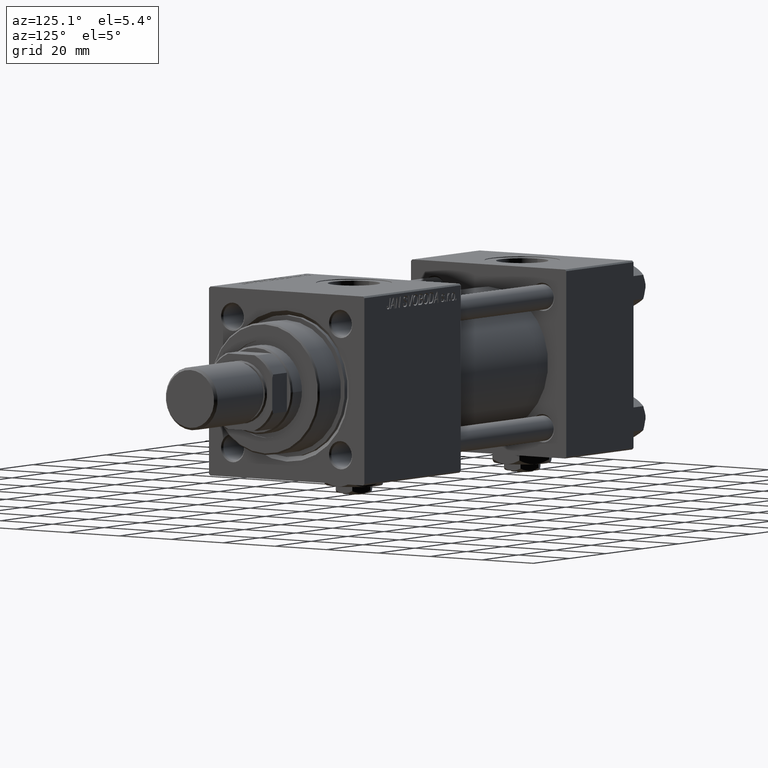
[diagram: clean part render]
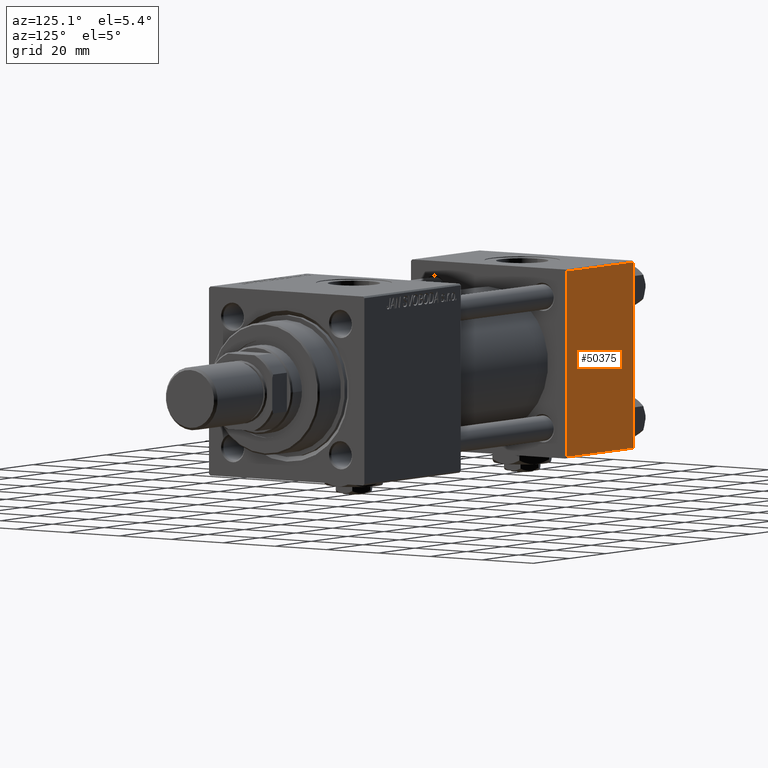
[diagram: same view with one face highlighted and labeled with its STEP entity id]
A machine part, auxiliary view. The second image highlights one B-rep face of the part: STEP entity #50375.
In plain terms, the highlighted planar face has unit normal (0, 1, 0).
Its self-contained STEP definition (entity closure, byte-faithful):
#150 = DIRECTION ( 'NONE',  ( -0.000000000000000000, 1.000000000000000000, 0.000000000000000000 ) ) ;
#392 = DIRECTION ( 'NONE',  ( 0.000000000000000000, 0.000000000000000000, -1.000000000000000000 ) ) ;
#1106 = ORIENTED_EDGE ( 'NONE', *, *, #38932, .T. ) ;
#3620 = PLANE ( 'NONE',  #15829 ) ;
#4140 = CARTESIAN_POINT ( 'NONE',  ( 37.00000000000000000, 29.99999999999999289, -29.50000000000000000 ) ) ;
#5272 = DIRECTION ( 'NONE',  ( 0.000000000000000000, 0.000000000000000000, -1.000000000000000000 ) ) ;
#6153 = VECTOR ( 'NONE', #11510, 1000.000000000000000 ) ;
#6437 = ORIENTED_EDGE ( 'NONE', *, *, #48100, .T. ) ;
#6901 = CARTESIAN_POINT ( 'NONE',  ( 0.000000000000000000, 29.99999999999999289, 29.50000000000000000 ) ) ;
#8398 = DIRECTION ( 'NONE',  ( 1.000000000000000000, 0.000000000000000000, 0.000000000000000000 ) ) ;
#8519 = ORIENTED_EDGE ( 'NONE', *, *, #24196, .F. ) ;
#9126 = EDGE_CURVE ( 'NONE', #36408, #39318, #28143, .T. ) ;
#11510 = DIRECTION ( 'NONE',  ( -1.000000000000000000, 0.000000000000000000, 0.000000000000000000 ) ) ;
#15829 = AXIS2_PLACEMENT_3D ( 'NONE', #40180, #150, #48414 ) ;
#16710 = ORIENTED_EDGE ( 'NONE', *, *, #9126, .T. ) ;
#16780 = CARTESIAN_POINT ( 'NONE',  ( 37.00000000000000000, 29.99999999999999289, 29.50000000000000000 ) ) ;
#21827 = CARTESIAN_POINT ( 'NONE',  ( 0.000000000000000000, 29.99999999999999289, 30.00000000000000000 ) ) ;
#24196 = EDGE_CURVE ( 'NONE', #36408, #39254, #50320, .T. ) ;
#24292 = VECTOR ( 'NONE', #392, 1000.000000000000000 ) ;
#28143 = LINE ( 'NONE', #28675, #31079 ) ;
#28413 = CARTESIAN_POINT ( 'NONE',  ( 37.00000000000000000, 29.99999999999999289, 30.00000000000000000 ) ) ;
#28468 = VERTEX_POINT ( 'NONE', #4140 ) ;
#28675 = CARTESIAN_POINT ( 'NONE',  ( 37.00000000000000000, 29.99999999999999289, 29.50000000000000000 ) ) ;
#31079 = VECTOR ( 'NONE', #8398, 1000.000000000000000 ) ;
#32429 = LINE ( 'NONE', #28413, #24292 ) ;
#32712 = FACE_OUTER_BOUND ( 'NONE', #52077, .T. ) ;
#33055 = CARTESIAN_POINT ( 'NONE',  ( 0.000000000000000000, 29.99999999999999289, -29.50000000000000000 ) ) ;
#36408 = VERTEX_POINT ( 'NONE', #6901 ) ;
#38932 = EDGE_CURVE ( 'NONE', #28468, #39254, #47774, .T. ) ;
#39254 = VERTEX_POINT ( 'NONE', #33055 ) ;
#39318 = VERTEX_POINT ( 'NONE', #16780 ) ;
#40180 = CARTESIAN_POINT ( 'NONE',  ( 37.00000000000000000, 29.99999999999999289, 30.00000000000000000 ) ) ;
#43795 = CARTESIAN_POINT ( 'NONE',  ( 37.00000000000000000, 29.99999999999999289, -29.50000000000000000 ) ) ;
#46802 = VECTOR ( 'NONE', #5272, 1000.000000000000000 ) ;
#47774 = LINE ( 'NONE', #43795, #6153 ) ;
#48100 = EDGE_CURVE ( 'NONE', #39318, #28468, #32429, .T. ) ;
#48414 = DIRECTION ( 'NONE',  ( 0.000000000000000000, -0.000000000000000000, 1.000000000000000000 ) ) ;
#50320 = LINE ( 'NONE', #21827, #46802 ) ;
#50375 = ADVANCED_FACE ( 'NONE', ( #32712 ), #3620, .T. ) ;
#52077 = EDGE_LOOP ( 'NONE', ( #6437, #1106, #8519, #16710 ) ) ;